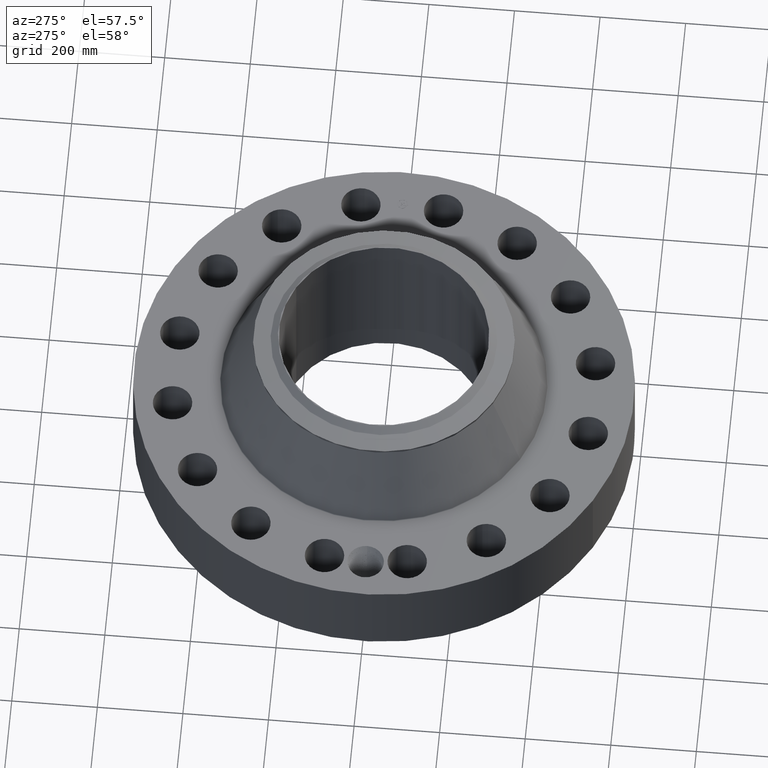
[diagram: clean part render]
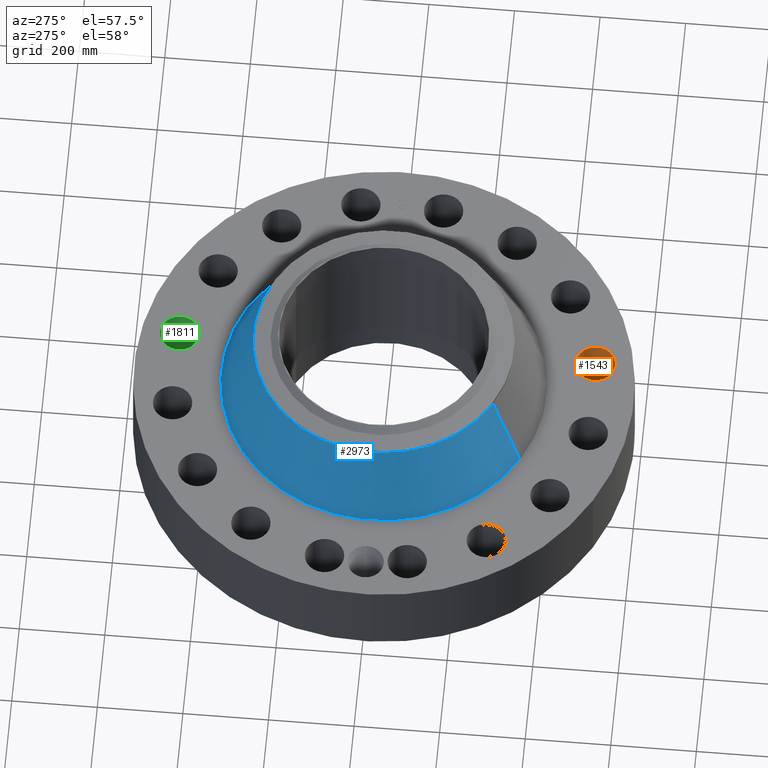
[diagram: same view with three faces highlighted in distinct colors, each labeled with its STEP entity id]
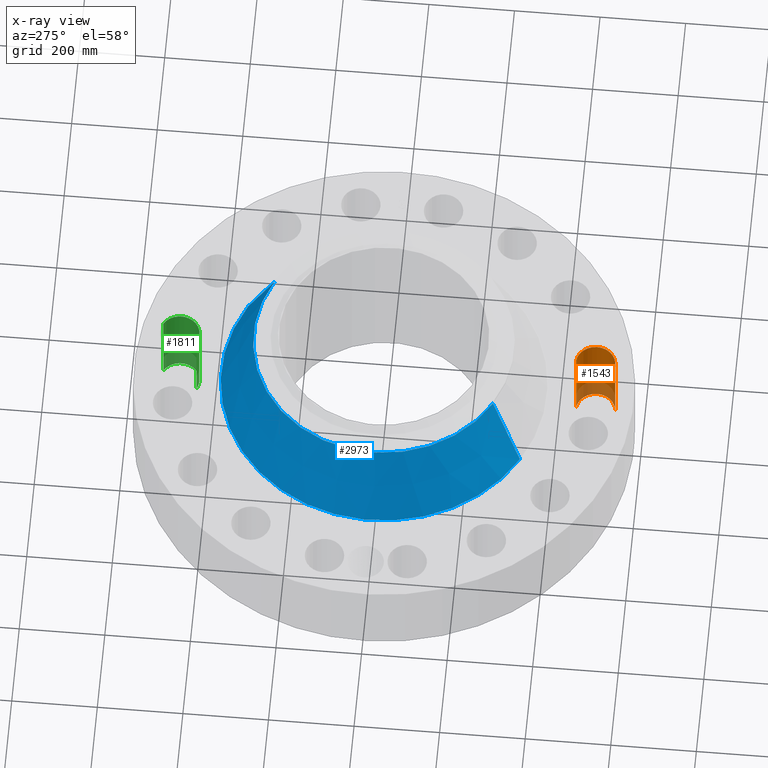
[diagram: x-ray of the same camera — body ghosted, the three highlighted faces saturated]
A machine part, auxiliary view with three faces highlighted in distinct colors.
The next image is the same camera in x-ray (body ghosted, the three faces saturated) — at least one of them is partly hidden behind the body in this view.
Their STEP definitions:

[orange] entity #1543 — the highlighted cylindrical surface (edge-blend (fillet) strip) has radius 45.974 mm, axis along (0, -0, -1).
#314=AXIS2_PLACEMENT_3D('Circle Axis2P3D',#312,#313,$) ;
#802=AXIS2_PLACEMENT_3D('Circle Axis2P3D',#800,#801,$) ;
#1525=AXIS2_PLACEMENT_3D('Cylinder Axis2P3D',#1522,#1523,#1524) ;
#312=CARTESIAN_POINT('Axis2P3D Location',(3.80426127933,-19.1253129679,0.250000000001)) ;
#316=CARTESIAN_POINT('Vertex',(3.99810347461,-17.3257226803,0.250000000001)) ;
#318=CARTESIAN_POINT('Vertex',(3.61041908405,-20.9249032556,0.250000000001)) ;
#795=CARTESIAN_POINT('Vertex',(3.61041908405,-20.9249032556,8.25000000003)) ;
#797=CARTESIAN_POINT('Vertex',(3.99810347461,-17.3257226803,8.25000000003)) ;
#800=CARTESIAN_POINT('Axis2P3D Location',(3.80426127933,-19.1253129679,8.25000000003)) ;
#1522=CARTESIAN_POINT('Axis2P3D Location',(3.80426127933,-19.1253129679,8.24606299216)) ;
#1527=CARTESIAN_POINT('Line Origine',(3.99810347461,-17.3257226803,4.25000000002)) ;
#1532=CARTESIAN_POINT('Line Origine',(3.61041908405,-20.9249032556,4.25000000002)) ;
#313=DIRECTION('Axis2P3D Direction',(0.,0.,-0.0393700787402)) ;
#801=DIRECTION('Axis2P3D Direction',(0.,0.,-0.0393700787402)) ;
#1523=DIRECTION('Axis2P3D Direction',(0.,-0.,-0.0393700787402)) ;
#1524=DIRECTION('Axis2P3D XDirection',(-0.00421634391778,-0.0391436526652,0.)) ;
#1528=DIRECTION('Vector Direction',(0.,0.,-0.0393700787402)) ;
#1533=DIRECTION('Vector Direction',(0.,0.,-0.0393700787402)) ;
#1529=VECTOR('Line Direction',#1528,0.0393700787402) ;
#1534=VECTOR('Line Direction',#1533,0.0393700787402) ;
#1538=ORIENTED_EDGE('',*,*,#1531,.F.) ;
#1539=ORIENTED_EDGE('',*,*,#320,.T.) ;
#1540=ORIENTED_EDGE('',*,*,#1536,.T.) ;
#1541=ORIENTED_EDGE('',*,*,#804,.F.) ;
#1543=ADVANCED_FACE('PartBody',(#1542),#1526,.F.) ;
#315=CIRCLE('generated circle',#314,1.81000000001) ;
#803=CIRCLE('generated circle',#802,1.81000000001) ;
#1526=CYLINDRICAL_SURFACE('generated cylinder',#1525,1.81000000001) ;
#320=EDGE_CURVE('',#317,#319,#315,.T.) ;
#804=EDGE_CURVE('',#798,#796,#803,.T.) ;
#1531=EDGE_CURVE('',#317,#798,#1530,.F.) ;
#1536=EDGE_CURVE('',#319,#796,#1535,.F.) ;
#1537=EDGE_LOOP('',(#1538,#1539,#1540,#1541)) ;
#1542=FACE_OUTER_BOUND('',#1537,.T.) ;
#1530=LINE('Line',#1527,#1529) ;
#1535=LINE('Line',#1532,#1534) ;
#317=VERTEX_POINT('',#316) ;
#319=VERTEX_POINT('',#318) ;
#796=VERTEX_POINT('',#795) ;
#798=VERTEX_POINT('',#797) ;

[blue] entity #2973 — the highlighted conical surface has half-angle 23.291 deg.
#2289=AXIS2_PLACEMENT_3D('Circle Axis2P3D',#2287,#2288,$) ;
#2934=AXIS2_PLACEMENT_3D('Cone Axis2P3D',#2931,#2932,#2933) ;
#2964=AXIS2_PLACEMENT_3D('Circle Axis2P3D',#2962,#2963,$) ;
#2265=CARTESIAN_POINT('Vertex',(7.17640941019,13.1363293113,8.32255108747)) ;
#2272=CARTESIAN_POINT('Vertex',(-7.17640941019,-13.1363293113,8.32255108747)) ;
#2287=CARTESIAN_POINT('Axis2P3D Location',(0.,0.,8.32255108747)) ;
#2931=CARTESIAN_POINT('Axis2P3D Location',(0.,0.,15.2188019131)) ;
#2936=CARTESIAN_POINT('Line Origine',(6.46475793673,11.833660027,11.7706765003)) ;
#2940=CARTESIAN_POINT('Vertex',(5.75310646327,10.5309907427,15.2188019131)) ;
#2947=CARTESIAN_POINT('Vertex',(-5.75310646327,-10.5309907427,15.2188019131)) ;
#2950=CARTESIAN_POINT('Line Origine',(-6.46475793673,-11.833660027,11.7706765003)) ;
#2962=CARTESIAN_POINT('Axis2P3D Location',(0.,0.,15.2188019131)) ;
#2288=DIRECTION('Axis2P3D Direction',(0.,0.,-0.0393700787402)) ;
#2932=DIRECTION('Axis2P3D Direction',(0.,0.,-0.0393700787402)) ;
#2933=DIRECTION('Axis2P3D XDirection',(-0.0188750212049,-0.0345504945626,0.)) ;
#2937=DIRECTION('Vector Direction',(0.00746332692273,0.0136615282952,-0.0361616439877)) ;
#2951=DIRECTION('Vector Direction',(-0.00746332692273,-0.0136615282952,-0.0361616439877)) ;
#2963=DIRECTION('Axis2P3D Direction',(0.,0.,-0.0393700787402)) ;
#2938=VECTOR('Line Direction',#2937,0.0393700787402) ;
#2952=VECTOR('Line Direction',#2951,0.0393700787402) ;
#2968=ORIENTED_EDGE('',*,*,#2291,.F.) ;
#2969=ORIENTED_EDGE('',*,*,#2954,.T.) ;
#2970=ORIENTED_EDGE('',*,*,#2966,.T.) ;
#2971=ORIENTED_EDGE('',*,*,#2942,.F.) ;
#2973=ADVANCED_FACE('PartBody',(#2972),#2935,.T.) ;
#2290=CIRCLE('generated circle',#2289,14.9687674776) ;
#2965=CIRCLE('generated circle',#2964,12.) ;
#2935=CONICAL_SURFACE('Cone',#2934,12.,0.406511578006) ;
#2291=EDGE_CURVE('',#2273,#2266,#2290,.T.) ;
#2942=EDGE_CURVE('',#2266,#2941,#2939,.F.) ;
#2954=EDGE_CURVE('',#2273,#2948,#2953,.F.) ;
#2966=EDGE_CURVE('',#2948,#2941,#2965,.T.) ;
#2967=EDGE_LOOP('',(#2968,#2969,#2970,#2971)) ;
#2972=FACE_OUTER_BOUND('',#2967,.T.) ;
#2939=LINE('Line',#2936,#2938) ;
#2953=LINE('Line',#2950,#2952) ;
#2266=VERTEX_POINT('',#2265) ;
#2273=VERTEX_POINT('',#2272) ;
#2941=VERTEX_POINT('',#2940) ;
#2948=VERTEX_POINT('',#2947) ;

[green] entity #1811 — the highlighted cylindrical surface (edge-blend (fillet) strip) has radius 45.974 mm, axis along (0, 0, -1).
#485=AXIS2_PLACEMENT_3D('Circle Axis2P3D',#483,#484,$) ;
#955=AXIS2_PLACEMENT_3D('Circle Axis2P3D',#953,#954,$) ;
#1786=AXIS2_PLACEMENT_3D('Cylinder Axis2P3D',#1783,#1784,#1785) ;
#478=CARTESIAN_POINT('Vertex',(2.93650105445,17.5368885309,0.250000000001)) ;
#480=CARTESIAN_POINT('Vertex',(4.67202150421,20.713737405,0.250000000001)) ;
#483=CARTESIAN_POINT('Axis2P3D Location',(3.80426127933,19.1253129679,0.250000000001)) ;
#953=CARTESIAN_POINT('Axis2P3D Location',(3.80426127933,19.1253129679,8.25000000003)) ;
#957=CARTESIAN_POINT('Vertex',(4.67202150421,20.713737405,8.25000000003)) ;
#959=CARTESIAN_POINT('Vertex',(2.93650105445,17.5368885309,8.25000000003)) ;
#1783=CARTESIAN_POINT('Axis2P3D Location',(3.80426127933,19.1253129679,8.24606299216)) ;
#1788=CARTESIAN_POINT('Line Origine',(2.93650105445,17.5368885309,4.25000000002)) ;
#1793=CARTESIAN_POINT('Line Origine',(4.67202150421,20.713737405,4.25000000002)) ;
#484=DIRECTION('Axis2P3D Direction',(0.,0.,-0.0393700787402)) ;
#954=DIRECTION('Axis2P3D Direction',(0.,0.,-0.0393700787402)) ;
#1784=DIRECTION('Axis2P3D Direction',(0.,0.,-0.0393700787402)) ;
#1785=DIRECTION('Axis2P3D XDirection',(0.0188750212049,0.0345504945626,0.)) ;
#1789=DIRECTION('Vector Direction',(0.,0.,-0.0393700787402)) ;
#1794=DIRECTION('Vector Direction',(0.,0.,-0.0393700787402)) ;
#1790=VECTOR('Line Direction',#1789,0.0393700787402) ;
#1795=VECTOR('Line Direction',#1794,0.0393700787402) ;
#1806=ORIENTED_EDGE('',*,*,#1797,.F.) ;
#1807=ORIENTED_EDGE('',*,*,#487,.T.) ;
#1808=ORIENTED_EDGE('',*,*,#1792,.T.) ;
#1809=ORIENTED_EDGE('',*,*,#961,.F.) ;
#1811=ADVANCED_FACE('PartBody',(#1810),#1787,.F.) ;
#486=CIRCLE('generated circle',#485,1.81000000001) ;
#956=CIRCLE('generated circle',#955,1.81000000001) ;
#1787=CYLINDRICAL_SURFACE('generated cylinder',#1786,1.81000000001) ;
#487=EDGE_CURVE('',#481,#479,#486,.T.) ;
#961=EDGE_CURVE('',#958,#960,#956,.T.) ;
#1792=EDGE_CURVE('',#479,#960,#1791,.F.) ;
#1797=EDGE_CURVE('',#481,#958,#1796,.F.) ;
#1805=EDGE_LOOP('',(#1806,#1807,#1808,#1809)) ;
#1810=FACE_OUTER_BOUND('',#1805,.T.) ;
#1791=LINE('Line',#1788,#1790) ;
#1796=LINE('Line',#1793,#1795) ;
#479=VERTEX_POINT('',#478) ;
#481=VERTEX_POINT('',#480) ;
#958=VERTEX_POINT('',#957) ;
#960=VERTEX_POINT('',#959) ;